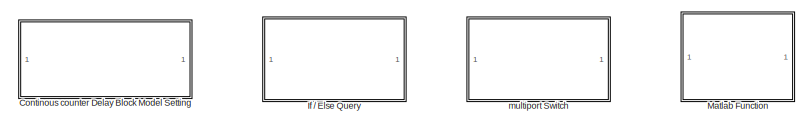
[diagram: root canvas - part 1/3, top center region]
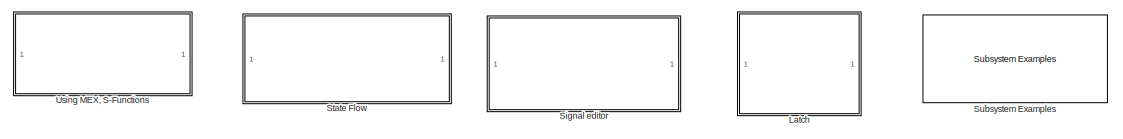
[diagram: root canvas - part 2/3, top right region]
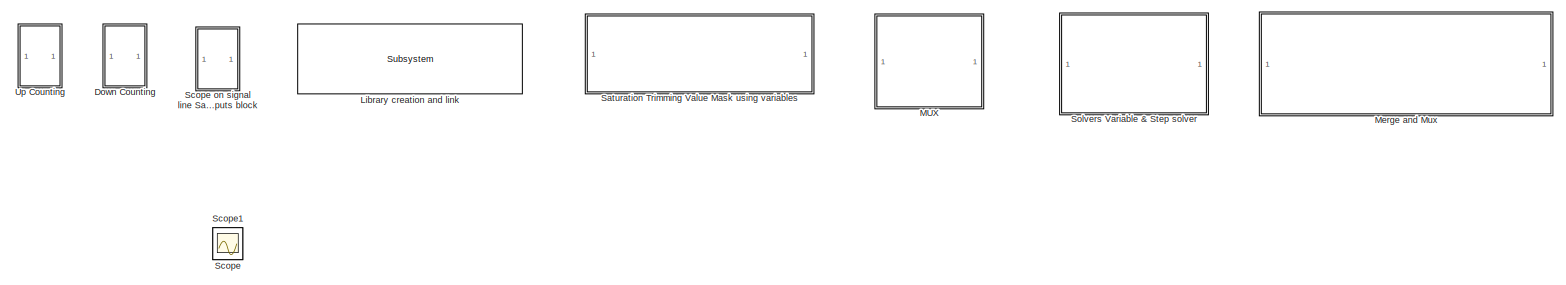
[diagram: root canvas - part 3/3, left side, full height]
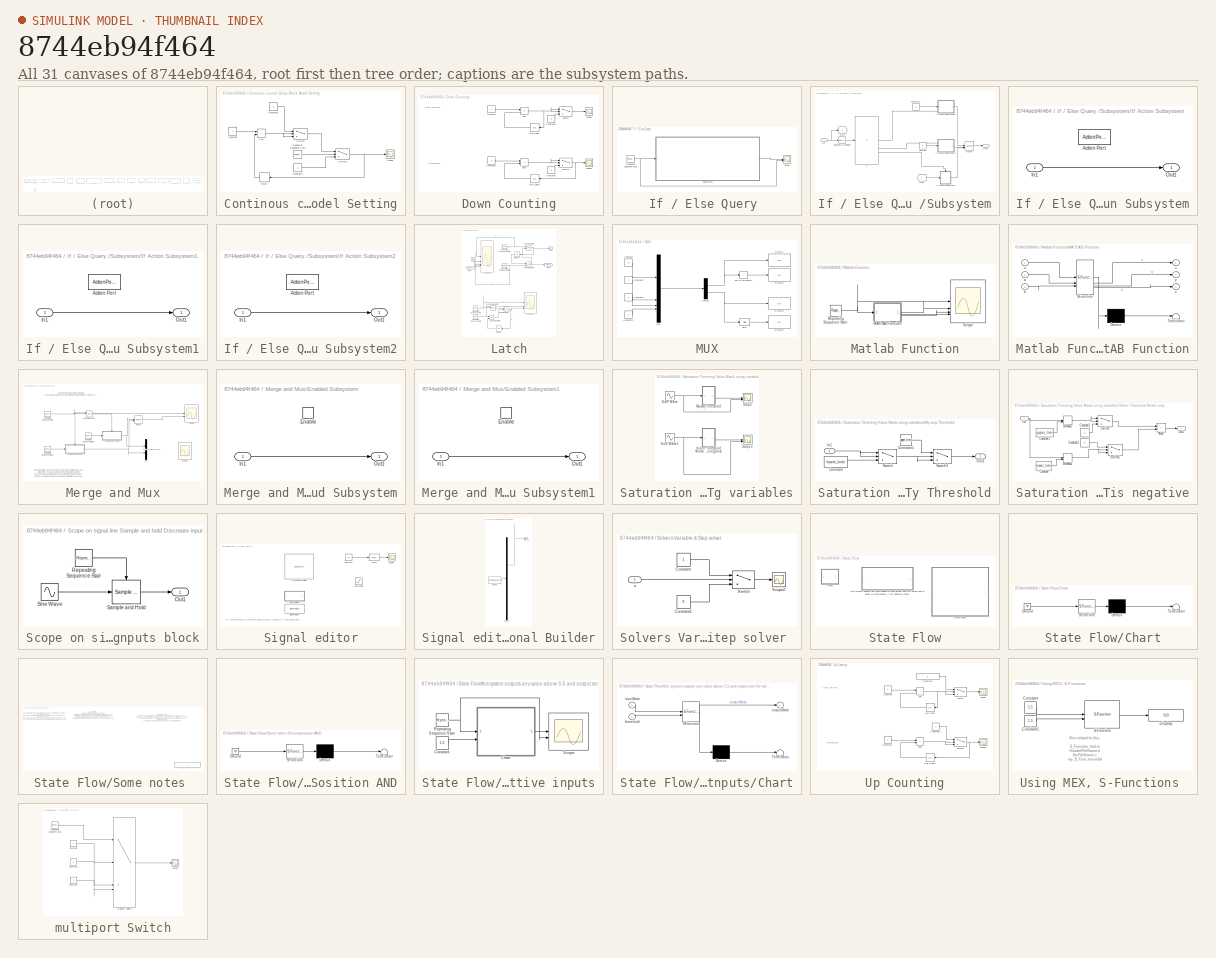
[diagram: thumbnail index - all 31 canvases of the model, root first then tree order]
MODEL slx_8744eb94f464
KIND model
CONFIG AbsTol = auto
CONFIG EnableMultiTasking = off
CONFIG FixedStep = 1
CONFIG MaxStep = auto
CONFIG MinStep = auto
CONFIG RelTol = 1e-3
CONFIG SampleTimeConstraint = Unconstrained
CONFIG SolverName = FixedStepAuto
CONFIG StartTime = 0.0
CONFIG StopTime = 10
WORKSPACE source: mxarray member
WORKSPACE Sig: Simulink.Signal (value not decoded)
WORKSPACE pi: Simulink.Parameter (value not decoded)
BLOCK [SubSystem] Continous counter Delay Block Model Setting
  Commented = on
BLOCK [Sum] Continous counter Delay Block Model Setting/Add
  IconShape = rectangular
BLOCK [Constant] Continous counter Delay Block Model Setting/Constant
BLOCK [Constant] Continous counter Delay Block Model Setting/Constant1
  Value = 0
BLOCK [Constant] Continous counter Delay Block Model Setting/Constant2
  Value = 0
BLOCK [Delay] Continous counter Delay Block Model Setting/Delay
  DelayLength = 1
  InputPortMap = u0
  NameLocation = top
BLOCK [Reference] Continous counter Delay Block Model Setting/Repeating Sequence Stair  REF=simulink/Sources/Repeating
Sequence
Stair
  SourceBlock = simulink/Sources/Repeating\nSequence\nStair
  SourceType = Repeating Sequence Stair
BLOCK [Scope] Continous counter Delay Block Model Setting/Scope
  Floating = off
  NumInputPorts = 1
  ScopeSpecificationString = Simulink.scopes.TimeScopeBlockCfg('CurrentConfiguration', extmgr.ConfigurationSet(extmgr.Configuration('Core','General UI',true),extmgr.Configuration('Core','Source UI',true),extmgr.Configuration('Sources','WiredSimulink',true,'DataLoggingVariableName','ScopeData10'),extmgr.Configuration('Visuals','Time Domain',true,'SerializedDisplays',{struct('MinYLimReal','-0.5','MaxYLimReal','4.5','YLabelReal'...<+1370ch>
BLOCK [Switch] Continous counter Delay Block Model Setting/Switch
  InputSameDT = off
  SaturateOnIntegerOverflow = off
  Threshold = 5
BLOCK [Switch] Continous counter Delay Block Model Setting/Switch1
  InputSameDT = off
  SaturateOnIntegerOverflow = off
  Threshold = 1
BLOCK [SubSystem] Down Counting
  Commented = on
BLOCK [Sum] Down Counting/Add
  IconShape = rectangular
  Inputs = -+
BLOCK [Sum] Down Counting/Add1
  IconShape = rectangular
  Inputs = -+
BLOCK [Constant] Down Counting/Constant
BLOCK [Constant] Down Counting/Constant1
  Value = 0
BLOCK [Constant] Down Counting/Constant2
BLOCK [Constant] Down Counting/Constant3
  Value = 5
BLOCK [Scope] Down Counting/Scope
  Floating = off
  NumInputPorts = 1
  ScopeSpecificationString = Simulink.scopes.TimeScopeBlockCfg('CurrentConfiguration', extmgr.ConfigurationSet(extmgr.Configuration('Core','General UI',true),extmgr.Configuration('Core','Source UI',true),extmgr.Configuration('Sources','WiredSimulink',true),extmgr.Configuration('Visuals','Time Domain',true,'SerializedDisplays',{struct('MinYLimReal','-0.625','MaxYLimReal','5.625','YLabelReal','','MinYLimMag','0.00000','MaxYLimM...<+1343ch>
BLOCK [Scope] Down Counting/Scope1
  Floating = off
  NumInputPorts = 1
  ScopeSpecificationString = Simulink.scopes.TimeScopeBlockCfg('CurrentConfiguration', extmgr.ConfigurationSet(extmgr.Configuration('Core','General UI',true),extmgr.Configuration('Core','Source UI',true),extmgr.Configuration('Sources','WiredSimulink',true,'DataLoggingVariableName','ScopeData2'),extmgr.Configuration('Visuals','Time Domain',true,'SerializedDisplays',{struct('MinYLimReal','-0.625','MaxYLimReal','5.625','YLabelRe...<+1383ch>
BLOCK [Switch] Down Counting/Switch
  InputSameDT = off
  SaturateOnIntegerOverflow = off
BLOCK [Switch] Down Counting/Switch1
  InputSameDT = off
  SaturateOnIntegerOverflow = off
BLOCK [UnitDelay] Down Counting/Unit Delay
  HasFrameUpgradeWarning = on
  InitialCondition = valueOfCounter+1
  NameLocation = top
  SampleTime = -1
BLOCK [UnitDelay] Down Counting/Unit Delay1
  HasFrameUpgradeWarning = on
  InitialCondition = valueOfCounter+1
  NameLocation = top
  SampleTime = -1
BLOCK [SubSystem] If // Else Query 
  Commented = on
BLOCK [Reference] If // Else Query /Repeating Sequence Stair  REF=simulink/Sources/Repeating
Sequence
Stair
  SourceBlock = simulink/Sources/Repeating\nSequence\nStair
  SourceType = Repeating Sequence Stair
BLOCK [Scope] If // Else Query /Scope
  Floating = off
  NumInputPorts = 2
  ScopeSpecificationString = Simulink.scopes.TimeScopeBlockCfg('CurrentConfiguration', extmgr.ConfigurationSet(extmgr.Configuration('Core','General UI',true),extmgr.Configuration('Core','Source UI',true),extmgr.Configuration('Sources','WiredSimulink',true,'DataLoggingVariableName','ScopeData10'),extmgr.Configuration('Visuals','Time Domain',true,'SerializedDisplays',{struct('MinYLimReal','-45.00000','MaxYLimReal','405.00000','...<+2040ch>
BLOCK [SubSystem] If // Else Query /Subsystem
BLOCK [Constant] If // Else Query /Subsystem/Constant
  Value = 0
BLOCK [Constant] If // Else Query /Subsystem/Constant1
  Value = 0
BLOCK [Reference] If // Else Query /Subsystem/Degrees to Radians  REF=simulink_extras/Transformations/Degrees to
Radians
  SourceBlock = simulink_extras/Transformations/Degrees to\nRadians
  SourceType = DegreesToRadians
BLOCK [From] If // Else Query /Subsystem/From
BLOCK [Goto] If // Else Query /Subsystem/Goto
BLOCK [If] If // Else Query /Subsystem/If
  ElseIfExpressions = u1 < lowerVal
  IfExpression = u1 > upperVal
BLOCK [SubSystem] If // Else Query /Subsystem/If Action Subsystem
  TreatAsAtomicUnit = on
BLOCK [ActionPort] If // Else Query /Subsystem/If Action Subsystem/Action Port
  ActionPortLabel = else
BLOCK [Inport] If // Else Query /Subsystem/If Action Subsystem/In1
BLOCK [Outport] If // Else Query /Subsystem/If Action Subsystem/Out1
BLOCK [SubSystem] If // Else Query /Subsystem/If Action Subsystem1
  TreatAsAtomicUnit = on
BLOCK [ActionPort] If // Else Query /Subsystem/If Action Subsystem1/Action Port
  ActionPortLabel = elseif(u1 < lowerVal)
BLOCK [Inport] If // Else Query /Subsystem/If Action Subsystem1/In1
BLOCK [Outport] If // Else Query /Subsystem/If Action Subsystem1/Out1
BLOCK [SubSystem] If // Else Query /Subsystem/If Action Subsystem2
  TreatAsAtomicUnit = on
BLOCK [ActionPort] If // Else Query /Subsystem/If Action Subsystem2/Action Port
  ActionPortLabel = if(u1 > upperVal)
BLOCK [Inport] If // Else Query /Subsystem/If Action Subsystem2/In1
BLOCK [Outport] If // Else Query /Subsystem/If Action Subsystem2/Out1
BLOCK [Inport] If // Else Query /Subsystem/In1
BLOCK [Merge] If // Else Query /Subsystem/Merge
  Inputs = 3
BLOCK [Outport] If // Else Query /Subsystem/Out1
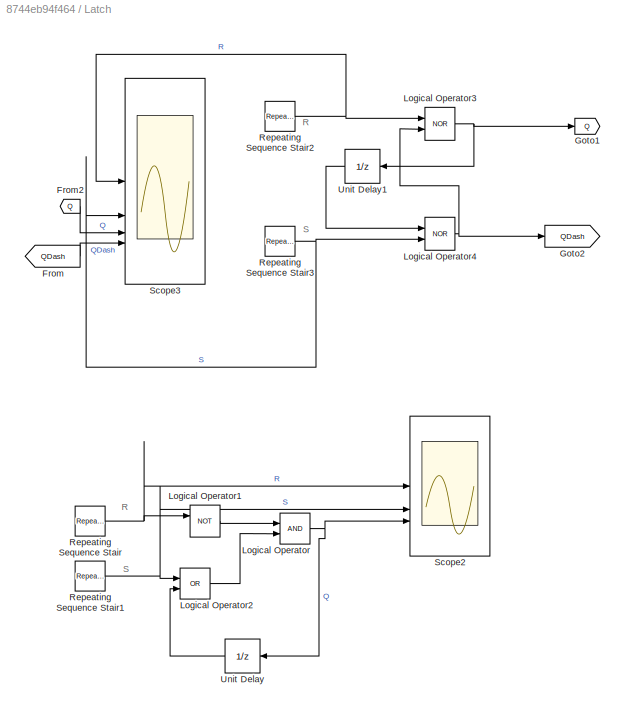
BLOCK [SubSystem] Latch
  Commented = on
BLOCK [From] Latch/From
  GotoTag = QDash
BLOCK [From] Latch/From2
  GotoTag = Q
BLOCK [Goto] Latch/Goto1
  GotoTag = Q
BLOCK [Goto] Latch/Goto2
  GotoTag = QDash
BLOCK [Logic] Latch/Logical Operator
  AllPortsSameDT = off
  OutDataTypeStr = boolean
BLOCK [Logic] Latch/Logical Operator1
  AllPortsSameDT = off
  Operator = NOT
  OutDataTypeStr = boolean
BLOCK [Logic] Latch/Logical Operator2
  AllPortsSameDT = off
  Operator = OR
  OutDataTypeStr = boolean
BLOCK [Logic] Latch/Logical Operator3
  AllPortsSameDT = off
  Operator = NOR
  OutDataTypeStr = boolean
BLOCK [Logic] Latch/Logical Operator4
  AllPortsSameDT = off
  Operator = NOR
  OutDataTypeStr = boolean
BLOCK [Reference] Latch/Repeating Sequence Stair  REF=simulink/Sources/Repeating
Sequence
Stair
  SourceBlock = simulink/Sources/Repeating\nSequence\nStair
  SourceType = Repeating Sequence Stair
BLOCK [Reference] Latch/Repeating Sequence Stair1  REF=simulink/Sources/Repeating
Sequence
Stair
  SourceBlock = simulink/Sources/Repeating\nSequence\nStair
  SourceType = Repeating Sequence Stair
BLOCK [Reference] Latch/Repeating Sequence Stair2  REF=simulink/Sources/Repeating
Sequence
Stair
  SourceBlock = simulink/Sources/Repeating\nSequence\nStair
  SourceType = Repeating Sequence Stair
BLOCK [Reference] Latch/Repeating Sequence Stair3  REF=simulink/Sources/Repeating
Sequence
Stair
  SourceBlock = simulink/Sources/Repeating\nSequence\nStair
  SourceType = Repeating Sequence Stair
BLOCK [Scope] Latch/Scope2
  Floating = off
  NumInputPorts = 3
  ScopeSpecificationString = Simulink.scopes.TimeScopeBlockCfg('CurrentConfiguration', extmgr.ConfigurationSet(extmgr.Configuration('Core','General UI',true),extmgr.Configuration('Core','Source UI',true),extmgr.Configuration('Sources','WiredSimulink',true,'DataLoggingVariableName','ScopeData3'),extmgr.Configuration('Visuals','Time Domain',true,'SerializedDisplays',{struct('MinYLimReal','-0.125','MaxYLimReal','1.125','YLabelRe...<+2646ch>
BLOCK [Scope] Latch/Scope3
  Floating = off
  NumInputPorts = 4
  ScopeSpecificationString = Simulink.scopes.TimeScopeBlockCfg('CurrentConfiguration', extmgr.ConfigurationSet(extmgr.Configuration('Core','General UI',true),extmgr.Configuration('Core','Source UI',true),extmgr.Configuration('Sources','WiredSimulink',true,'DataLoggingVariableName','ScopeData4'),extmgr.Configuration('Visuals','Time Domain',true,'SerializedDisplays',{struct('MinYLimReal','-0.125','MaxYLimReal','1.125','YLabelRe...<+3730ch>
BLOCK [UnitDelay] Latch/Unit Delay
  HasFrameUpgradeWarning = on
  NameLocation = top
  SampleTime = -1
BLOCK [UnitDelay] Latch/Unit Delay1
  HasFrameUpgradeWarning = on
  InitialCondition = 1
  NameLocation = top
  SampleTime = -1
BLOCK [Reference] Library creation and link  REF=lib_sample/Subsystem  (lib defined in slx_4dc03bdb67a3)
  Commented = on
  LibrarySourceBlock = lib_sample2/Subsystem
  SourceBlock = lib_sample/Subsystem
BLOCK [SubSystem] MUX
  Commented = on
BLOCK [Bias] MUX/Bias
  Bias = 10
  SaturateOnIntegerOverflow = off
BLOCK [Constant] MUX/Constant
  Value = 0
BLOCK [Constant] MUX/Constant1
BLOCK [Constant] MUX/Constant2
  Value = 2
BLOCK [Constant] MUX/Constant3
  Value = 3
BLOCK [Demux] MUX/Demux
  Outputs = 2
BLOCK [Display] MUX/Display
  Decimation = 1
BLOCK [Display] MUX/Display1
  Decimation = 1
BLOCK [Display] MUX/Display2
  Decimation = 1
BLOCK [Display] MUX/Display3
  Decimation = 1
BLOCK [Mux] MUX/Mux
  DisplayOption = bar
BLOCK [Sum] MUX/Sum of Elements
  IconShape = rectangular
  Inputs = +
BLOCK [SubSystem] Matlab Function
  Commented = on
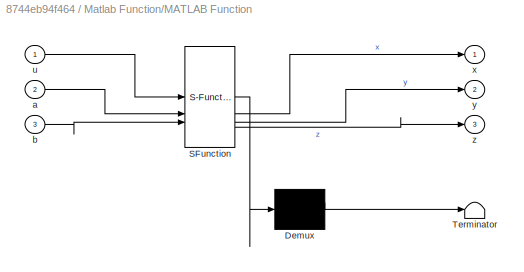
BLOCK [SubSystem] Matlab Function/MATLAB Function
  ErrorFcn = Stateflow.Translate.translate
  LibrarySourceBlock = simulink/User-Defined\nFunctions/MATLAB Function
  PermitHierarchicalResolution = ExplicitOnly
  SFBlockType = MATLAB Function
  TreatAsAtomicUnit = on
BLOCK [Demux] Matlab Function/MATLAB Function/ Demux 
  Outputs = 1
BLOCK [S-Function] Matlab Function/MATLAB Function/ SFunction 
  EnableBusSupport = on
  FunctionName = sf_sfun
  PortCounts = [3 4]
  SFcnIsStateOwnerBlock = off
  SFunctionDeploymentMode = off
  Tag = Stateflow S-Function 2
BLOCK [Terminator] Matlab Function/MATLAB Function/ Terminator 
BLOCK [Inport] Matlab Function/MATLAB Function/a
  Port = 2
BLOCK [Inport] Matlab Function/MATLAB Function/b
  Port = 3
BLOCK [Inport] Matlab Function/MATLAB Function/u
BLOCK [Outport] Matlab Function/MATLAB Function/x
BLOCK [Outport] Matlab Function/MATLAB Function/y
  Port = 2
BLOCK [Outport] Matlab Function/MATLAB Function/z
  Port = 3
BLOCK [Reference] Matlab Function/Repeating Sequence Stair  REF=simulink/Sources/Repeating
Sequence
Stair
  SourceBlock = simulink/Sources/Repeating\nSequence\nStair
  SourceType = Repeating Sequence Stair
BLOCK [Scope] Matlab Function/Scope
  Floating = off
  NumInputPorts = 4
  ScopeSpecificationString = Simulink.scopes.TimeScopeBlockCfg('CurrentConfiguration', extmgr.ConfigurationSet(extmgr.Configuration('Core','General UI',true),extmgr.Configuration('Core','Source UI',true),extmgr.Configuration('Sources','WiredSimulink',true,'DataLoggingVariableName','ScopeData11'),extmgr.Configuration('Visuals','Time Domain',true,'SerializedDisplays',{struct('MinYLimReal','-6.25','MaxYLimReal','56.25','YLabelRe...<+3407ch>
BLOCK [SubSystem] Merge and Mux
  Commented = on
BLOCK [SubSystem] Merge and Mux/Enabled Subsystem
  TreatAsAtomicUnit = on
BLOCK [EnablePort] Merge and Mux/Enabled Subsystem/Enable
BLOCK [Inport] Merge and Mux/Enabled Subsystem/In1
BLOCK [Outport] Merge and Mux/Enabled Subsystem/Out1
BLOCK [SubSystem] Merge and Mux/Enabled Subsystem1
  TreatAsAtomicUnit = on
BLOCK [EnablePort] Merge and Mux/Enabled Subsystem1/Enable
BLOCK [Inport] Merge and Mux/Enabled Subsystem1/In1
BLOCK [Outport] Merge and Mux/Enabled Subsystem1/Out1
BLOCK [Logic] Merge and Mux/Logical Operator
  AllPortsSameDT = off
  Operator = NOT
  OutDataTypeStr = boolean
BLOCK [Merge] Merge and Mux/Merge
BLOCK [Mux] Merge and Mux/Mux
  DisplayOption = bar
  Inputs = 2
BLOCK [Reference] Merge and Mux/Repeating Sequence Stair  REF=simulink/Sources/Repeating
Sequence
Stair
  SourceBlock = simulink/Sources/Repeating\nSequence\nStair
  SourceType = Repeating Sequence Stair
BLOCK [Reference] Merge and Mux/Repeating Sequence Stair1  REF=simulink/Sources/Repeating
Sequence
Stair
  SourceBlock = simulink/Sources/Repeating\nSequence\nStair
  SourceType = Repeating Sequence Stair
BLOCK [Reference] Merge and Mux/Repeating Sequence Stair2  REF=simulink/Sources/Repeating
Sequence
Stair
  SourceBlock = simulink/Sources/Repeating\nSequence\nStair
  SourceType = Repeating Sequence Stair
BLOCK [Scope] Merge and Mux/Scope
  Floating = off
  NumInputPorts = 2
  ScopeSpecificationString = Simulink.scopes.TimeScopeBlockCfg('CurrentConfiguration', extmgr.ConfigurationSet(extmgr.Configuration('Core','General UI',true),extmgr.Configuration('Core','Source UI',true),extmgr.Configuration('Sources','WiredSimulink',true,'DataLoggingVariableName','ScopeData8'),extmgr.Configuration('Visuals','Time Domain',true,'SerializedDisplays',{struct('MinYLimReal','-1.00000','MaxYLimReal','1.00000','YLab...<+2677ch>
BLOCK [Scope] Merge and Mux/Scope1
  Floating = off
  NumInputPorts = 1
  ScopeSpecificationString = Simulink.scopes.TimeScopeBlockCfg('CurrentConfiguration', extmgr.ConfigurationSet(extmgr.Configuration('Core','General UI',true),extmgr.Configuration('Core','Source UI',true),extmgr.Configuration('Sources','WiredSimulink',true,'DataLoggingVariableName','ScopeData9'),extmgr.Configuration('Visuals','Time Domain',true,'SerializedDisplays',{struct('MinYLimReal','-1.00000','MaxYLimReal','1.00000','YLab...<+2761ch>
BLOCK [SubSystem] Saturation Trimming Value Mask using variables
  Commented = on
BLOCK [SubSystem] Saturation Trimming Value Mask using variables/My way Threshold
BLOCK [Constant] Saturation Trimming Value Mask using variables/My way Threshold/Constant
  Value = lower_limit
BLOCK [Constant] Saturation Trimming Value Mask using variables/My way Threshold/Constant1
  Value = upper_limit
BLOCK [Inport] Saturation Trimming Value Mask using variables/My way Threshold/In1
BLOCK [Outport] Saturation Trimming Value Mask using variables/My way Threshold/Out1
BLOCK [Switch] Saturation Trimming Value Mask using variables/My way Threshold/Switch
  Criteria = u2 > Threshold
  InputSameDT = off
  SaturateOnIntegerOverflow = off
  Threshold = lower_limit
BLOCK [Switch] Saturation Trimming Value Mask using variables/My way Threshold/Switch1
  Criteria = u2 > Threshold
  InputSameDT = off
  SaturateOnIntegerOverflow = off
  Threshold = upper_limit
BLOCK [Scope] Saturation Trimming Value Mask using variables/Scope
  Floating = off
  NumInputPorts = 2
  ScopeSpecificationString = Simulink.scopes.TimeScopeBlockCfg('CurrentConfiguration', extmgr.ConfigurationSet(extmgr.Configuration('Core','General UI',true),extmgr.Configuration('Core','Source UI',true),extmgr.Configuration('Sources','WiredSimulink',true,'DataLoggingVariableName','ScopeData5'),extmgr.Configuration('Visuals','Time Domain',true,'SerializedDisplays',{struct('MinYLimReal','-1.625','MaxYLimReal','14.625','YLabelR...<+1960ch>
BLOCK [Scope] Saturation Trimming Value Mask using variables/Scope1
  Floating = off
  NumInputPorts = 2
  ScopeSpecificationString = Simulink.scopes.TimeScopeBlockCfg('CurrentConfiguration', extmgr.ConfigurationSet(extmgr.Configuration('Core','General UI',true),extmgr.Configuration('Core','Source UI',true),extmgr.Configuration('Sources','WiredSimulink',true,'DataLoggingVariableName','ScopeData6'),extmgr.Configuration('Visuals','Time Domain',true,'SerializedDisplays',{struct('MinYLimReal','-1.625','MaxYLimReal','14.625','YLabelR...<+2037ch>
BLOCK [Sin] Saturation Trimming Value Mask using variables/Sine Wave
  Amplitude = 15
  Frequency = 2
  SampleTime = 0
BLOCK [Sin] Saturation Trimming Value Mask using variables/Sine Wave1
  Amplitude = 15
  Frequency = 2
  SampleTime = 0
BLOCK [SubSystem] Saturation Trimming Value Mask using variables/Video Threshold Works only and only if lower limit is negative
BLOCK [Sum] Saturation Trimming Value Mask using variables/Video Threshold Works only and only if lower limit is negative/Add
  IconShape = rectangular
BLOCK [Constant] Saturation Trimming Value Mask using variables/Video Threshold Works only and only if lower limit is negative/Constant
  Value = lower_limit
BLOCK [Constant] Saturation Trimming Value Mask using variables/Video Threshold Works only and only if lower limit is negative/Constant1
  Value = upper_limit
BLOCK [Constant] Saturation Trimming Value Mask using variables/Video Threshold Works only and only if lower limit is negative/Constant2
  Value = 0
BLOCK [Constant] Saturation Trimming Value Mask using variables/Video Threshold Works only and only if lower limit is negative/Constant3
  Value = 0
BLOCK [Inport] Saturation Trimming Value Mask using variables/Video Threshold Works only and only if lower limit is negative/In1
BLOCK [MinMax] Saturation Trimming Value Mask using variables/Video Threshold Works only and only if lower limit is negative/MinMax
  Inputs = 2
BLOCK [MinMax] Saturation Trimming Value Mask using variables/Video Threshold Works only and only if lower limit is negative/MinMax1
  Function = max
  Inputs = 2
BLOCK [Outport] Saturation Trimming Value Mask using variables/Video Threshold Works only and only if lower limit is negative/Out1
BLOCK [Switch] Saturation Trimming Value Mask using variables/Video Threshold Works only and only if lower limit is negative/Switch
  InputSameDT = off
  SaturateOnIntegerOverflow = off
BLOCK [Switch] Saturation Trimming Value Mask using variables/Video Threshold Works only and only if lower limit is negative/Switch1
  InputSameDT = off
  SaturateOnIntegerOverflow = off
BLOCK [Scope] Scope
  Floating = off
  IOType = viewer
  NumInputPorts = 1
  ScopeSpecificationString = Simulink.scopes.TimeScopeBlockCfg('CurrentConfiguration', extmgr.ConfigurationSet(extmgr.Configuration('Core','General UI',true),extmgr.Configuration('Core','Source UI',true),extmgr.Configuration('Sources','WiredSimulink',true,'DataLoggingVariableName','ScopeData3'),extmgr.Configuration('Visuals','Time Domain',true,'SerializedDisplays',{struct('MinYLimReal','-6.22816','MaxYLimReal','6.2452','YLabe...<+2694ch>
BLOCK [SubSystem] Scope on signal line Sample and hold Discreate inputs block
  Commented = on
BLOCK [Outport] Scope on signal line Sample and hold Discreate inputs block/Out1
BLOCK [Reference] Scope on signal line Sample and hold Discreate inputs block/Repeating Sequence Stair  REF=simulink/Sources/Repeating
Sequence
Stair
  SourceBlock = simulink/Sources/Repeating\nSequence\nStair
  SourceType = Repeating Sequence Stair
BLOCK [Reference] Scope on signal line Sample and hold Discreate inputs block/Sample and Hold  REF=dspsigops/Sample
and Hold
  LibrarySourceBlock = dsphdlsupportsigops/Sample\nand Hold
  SourceBlock = dspsigops/Sample\nand Hold
  SourceType = Sample and Hold
BLOCK [Sin] Scope on signal line Sample and hold Discreate inputs block/Sine Wave
  Amplitude = 5
  SampleTime = 0
BLOCK [Scope] Scope1
  Floating = off
  IOType = viewer
  NumInputPorts = 1
  ScopeSpecificationString = Simulink.scopes.TimeScopeBlockCfg('CurrentConfiguration', extmgr.ConfigurationSet(extmgr.Configuration('Core','General UI',true),extmgr.Configuration('Core','Source UI',true),extmgr.Configuration('Sources','WiredSimulink',true,'DataLoggingVariableName','ScopeData4'),extmgr.Configuration('Visuals','Time Domain',true,'SerializedDisplays',{struct('MinYLimReal','-16.25','MaxYLimReal','16.25','YLabelRe...<+2008ch>
BLOCK [SubSystem] Signal editor
  Commented = on
BLOCK [Lookup_n-D] Signal editor/1-D Lookup Table
  BreakpointsForDimension1 = [0.5:0.04:4.5]
  InputPortMap = u0
  InternalRulePriority = Speed
  NumberOfTableDimensions = 1
  RndMeth = Simplest
  Table = [0:1:100]
BLOCK [Constant] Signal editor/Constant
  Value = 0.2
BLOCK [Reference] Signal editor/PWM  REF=simulink/Discontinuities/PWM
  DisableCoverage = on
  SourceBlock = simulink/Discontinuities/PWM
  SourceType = PWM
BLOCK [Saturate] Signal editor/Saturation
BLOCK [Scope] Signal editor/Scope
  Floating = off
  NumInputPorts = 1
  ScopeSpecificationString = Simulink.scopes.TimeScopeBlockCfg('CurrentConfiguration', extmgr.ConfigurationSet(extmgr.Configuration('Core','General UI',true),extmgr.Configuration('Core','Source UI',true),extmgr.Configuration('Sources','WiredSimulink',true,'DataLoggingVariableName','ScopeData2'),extmgr.Configuration('Visuals','Time Domain',true,'SerializedDisplays',{struct('MinYLimReal','-0.125','MaxYLimReal','1.125','YLabelRe...<+1377ch>
BLOCK [SubSystem] Signal editor/Signal Builder
  ClipboardFcn = sigbuilder_block('clipboard');
  CloseFcn = sigbuilder_block('close');
  ContinueFcn = sigbuilder_block('continue');
  CopyFcn = sigbuilder_block('copy');
  DeleteFcn = sigbuilder_block('delete');
  LoadFcn = sigbuilder_block('load');
  MaskHideContents = on
  ModelCloseFcn = sigbuilder_block('modelClose');
  NameChangeFcn = sigbuilder_block('namechange');
  OpenFcn = sigbuilder_block('open',[437.6 199.2 550.4 400 ]);
  PauseFcn = sigbuilder_block('pause');
  PreSaveFcn = sigbuilder_block('preSave');
  StartFcn = sigbuilder_block('start');
  StopFcn = sigbuilder_block('stop');
  Tag = STV Subsys
BLOCK [Demux] Signal editor/Signal Builder/Demux
  DisplayOption = none
  Outputs = 1
  Tag = STV Demux
BLOCK [FromWorkspace] Signal editor/Signal Builder/FromWs
  Tag = STV FromWs
  VariableName = tuvar
BLOCK [Outport] Signal editor/Signal Builder/Signal 1
  Tag = STV Outport
BLOCK [Reference] Signal editor/Signal Editor  REF=SignalEditorBlockLib/Signal Editor
  LibrarySourceBlock = simulink/Sources/Signal Editor
  SourceBlock = SignalEditorBlockLib/Signal Editor
  SourceType = SignalEditor
  UserDataPersistent = on
BLOCK [SubSystem] Solvers Variable & Step solver 
  Commented = on
BLOCK [Constant] Solvers Variable & Step solver /Constant
BLOCK [Constant] Solvers Variable & Step solver /Constant1
  Value = 0
BLOCK [Scope] Solvers Variable & Step solver /Scope2
  Floating = off
  NumInputPorts = 1
  ScopeSpecificationString = Simulink.scopes.TimeScopeBlockCfg('CurrentConfiguration', extmgr.ConfigurationSet(extmgr.Configuration('Core','General UI',true),extmgr.Configuration('Core','Source UI',true),extmgr.Configuration('Sources','WiredSimulink',true,'DataLoggingVariableName','ScopeData7'),extmgr.Configuration('Visuals','Time Domain',true,'SerializedDisplays',{struct('MinYLimReal','-0.125','MaxYLimReal','1.125','YLabelRe...<+1353ch>
BLOCK [Switch] Solvers Variable & Step solver /Switch
  InputSameDT = off
  SaturateOnIntegerOverflow = off
BLOCK [Inport] Solvers Variable & Step solver /u
BLOCK [SubSystem] State Flow
  Commented = on
BLOCK [SubSystem] State Flow/Chart
  ErrorFcn = Stateflow.Translate.translate
  PermitHierarchicalResolution = ExplicitOnly
  SFBlockType = Chart
  TreatAsAtomicUnit = on
BLOCK [Demux] State Flow/Chart/ Demux 
  Outputs = 1
BLOCK [Ground] State Flow/Chart/ Ground 
BLOCK [S-Function] State Flow/Chart/ SFunction 
  EnableBusSupport = on
  FunctionName = sf_sfun
  PortCounts = [1 1]
  SFcnIsStateOwnerBlock = off
  SFunctionDeploymentMode = off
  Tag = Stateflow S-Function 1
BLOCK [Terminator] State Flow/Chart/ Terminator 
BLOCK [SubSystem] State Flow/Some notes 
BLOCK [SubSystem] State Flow/Some notes /Decomposition AND
  ErrorFcn = Stateflow.Translate.translate
  PermitHierarchicalResolution = ExplicitOnly
  SFBlockType = Chart
  TreatAsAtomicUnit = on
BLOCK [Demux] State Flow/Some notes /Decomposition AND/ Demux 
  Outputs = 1
BLOCK [Ground] State Flow/Some notes /Decomposition AND/ Ground 
BLOCK [S-Function] State Flow/Some notes /Decomposition AND/ SFunction 
  EnableBusSupport = on
  FunctionName = sf_sfun
  PortCounts = [1 1]
  SFcnIsStateOwnerBlock = off
  SFunctionDeploymentMode = off
  Tag = Stateflow S-Function 4
BLOCK [Terminator] State Flow/Some notes /Decomposition AND/ Terminator 
BLOCK [SubSystem] State Flow/this system outputs any value above 5.5 and output zero for value less or  equal 5.5 and outputs -1 for negative inputs
BLOCK [SubSystem] State Flow/this system outputs any value above 5.5 and output zero for value less or  equal 5.5 and outputs -1 for negative inputs/Chart
  ErrorFcn = Stateflow.Translate.translate
  PermitHierarchicalResolution = ExplicitOnly
  SFBlockType = Chart
  TreatAsAtomicUnit = on
BLOCK [Demux] State Flow/this system outputs any value above 5.5 and output zero for value less or  equal 5.5 and outputs -1 for negative inputs/Chart/ Demux 
  Outputs = 1
BLOCK [S-Function] State Flow/this system outputs any value above 5.5 and output zero for value less or  equal 5.5 and outputs -1 for negative inputs/Chart/ SFunction 
  EnableBusSupport = on
  FunctionName = sf_sfun
  PortCounts = [2 2]
  SFcnIsStateOwnerBlock = off
  SFunctionDeploymentMode = off
  Tag = Stateflow S-Function 3
BLOCK [Terminator] State Flow/this system outputs any value above 5.5 and output zero for value less or  equal 5.5 and outputs -1 for negative inputs/Chart/ Terminator 
BLOCK [Inport] State Flow/this system outputs any value above 5.5 and output zero for value less or  equal 5.5 and outputs -1 for negative inputs/Chart/inputData
BLOCK [Outport] State Flow/this system outputs any value above 5.5 and output zero for value less or  equal 5.5 and outputs -1 for negative inputs/Chart/outputData
BLOCK [Inport] State Flow/this system outputs any value above 5.5 and output zero for value less or  equal 5.5 and outputs -1 for negative inputs/Chart/threshold
  Port = 2
BLOCK [Constant] State Flow/this system outputs any value above 5.5 and output zero for value less or  equal 5.5 and outputs -1 for negative inputs/Constant
  Value = 5.5
BLOCK [Reference] State Flow/this system outputs any value above 5.5 and output zero for value less or  equal 5.5 and outputs -1 for negative inputs/Repeating Sequence Stair  REF=simulink/Sources/Repeating
Sequence
Stair
  SourceBlock = simulink/Sources/Repeating\nSequence\nStair
  SourceType = Repeating Sequence Stair
BLOCK [Scope] State Flow/this system outputs any value above 5.5 and output zero for value less or  equal 5.5 and outputs -1 for negative inputs/Scope
  Floating = off
  NumInputPorts = 2
  ScopeSpecificationString = Simulink.scopes.TimeScopeBlockCfg('CurrentConfiguration', extmgr.ConfigurationSet(extmgr.Configuration('Core','General UI',true),extmgr.Configuration('Core','Source UI',true),extmgr.Configuration('Sources','WiredSimulink',true,'DataLoggingVariableName','ScopeData1'),extmgr.Configuration('Visuals','Time Domain',true,'SerializedDisplays',{struct('MinYLimReal','-6.75','MaxYLimReal','10.75','YLabelRea...<+1982ch>
BLOCK [Reference] Subsystem Examples  REF=simulink/Ports &
Subsystems/Subsystem Examples
  Commented = on
  SourceBlock = simulink/Ports &\nSubsystems/Subsystem Examples
  SourceType = Subsystem Examples
BLOCK [SubSystem] Up Counting
  Commented = on
BLOCK [Sum] Up Counting/Add
  IconShape = rectangular
BLOCK [Sum] Up Counting/Add1
  IconShape = rectangular
BLOCK [Constant] Up Counting/Constant
BLOCK [Constant] Up Counting/Constant1
  Value = 5
BLOCK [Constant] Up Counting/Constant2
BLOCK [Constant] Up Counting/Constant3
  Value = 0
BLOCK [Scope] Up Counting/Scope
  Floating = off
  NumInputPorts = 1
  ScopeSpecificationString = Simulink.scopes.TimeScopeBlockCfg('CurrentConfiguration', extmgr.ConfigurationSet(extmgr.Configuration('Core','General UI',true),extmgr.Configuration('Core','Source UI',true),extmgr.Configuration('Sources','WiredSimulink',true),extmgr.Configuration('Visuals','Time Domain',true,'SerializedDisplays',{struct('MinYLimReal','-0.625','MaxYLimReal','5.625','YLabelReal','','MinYLimMag','0.00000','MaxYLimM...<+1344ch>
BLOCK [Scope] Up Counting/Scope1
  Floating = off
  NumInputPorts = 1
  ScopeSpecificationString = Simulink.scopes.TimeScopeBlockCfg('CurrentConfiguration', extmgr.ConfigurationSet(extmgr.Configuration('Core','General UI',true),extmgr.Configuration('Core','Source UI',true),extmgr.Configuration('Sources','WiredSimulink',true,'DataLoggingVariableName','ScopeData1'),extmgr.Configuration('Visuals','Time Domain',true,'SerializedDisplays',{struct('MinYLimReal','-0.625','MaxYLimReal','5.625','YLabelRe...<+1384ch>
BLOCK [Switch] Up Counting/Switch
  Criteria = u2 > Threshold
  InputSameDT = off
  SaturateOnIntegerOverflow = off
  Threshold = valueOfCounter
BLOCK [Switch] Up Counting/Switch1
  Criteria = u2 > Threshold
  InputSameDT = off
  SaturateOnIntegerOverflow = off
  Threshold = valueOfCounter
BLOCK [UnitDelay] Up Counting/Unit Delay
  HasFrameUpgradeWarning = on
  InitialCondition = -1
  NameLocation = top
  SampleTime = -1
BLOCK [UnitDelay] Up Counting/Unit Delay1
  HasFrameUpgradeWarning = on
  InitialCondition = -1
  NameLocation = top
  SampleTime = -1
BLOCK [SubSystem] Using MEX, S-Functions 
  Commented = on
BLOCK [Constant] Using MEX, S-Functions /Constant
  Value = 3.5
BLOCK [Constant] Using MEX, S-Functions /Constant1
  Value = 1.5
BLOCK [Display] Using MEX, S-Functions /Display
  Decimation = 1
BLOCK [S-Function] Using MEX, S-Functions /S-Function
  EnableBusSupport = off
  FunctionName = my_S_Func
  SFcnIsStateOwnerBlock = off
  SFunctionDeploymentMode = off
BLOCK [SubSystem] multiport Switch
  Commented = on
BLOCK [Constant] multiport Switch/Constant
BLOCK [Constant] multiport Switch/Constant1
  Value = 2
BLOCK [Constant] multiport Switch/Constant2
  Value = 3
BLOCK [MultiPortSwitch] multiport Switch/Multiport Switch
  DataPortIndices = {1,2,20}
  InputSameDT = off
  SaturateOnIntegerOverflow = off
BLOCK [Reference] multiport Switch/Repeating Sequence Stair  REF=simulink/Sources/Repeating
Sequence
Stair
  SourceBlock = simulink/Sources/Repeating\nSequence\nStair
  SourceType = Repeating Sequence Stair
BLOCK [Scope] multiport Switch/Scope
  Floating = off
  NumInputPorts = 1
  ScopeSpecificationString = Simulink.scopes.TimeScopeBlockCfg('CurrentConfiguration', extmgr.ConfigurationSet(extmgr.Configuration('Core','General UI',true),extmgr.Configuration('Core','Source UI',true),extmgr.Configuration('Sources','WiredSimulink',true,'DataLoggingVariableName','ScopeData10'),extmgr.Configuration('Visuals','Time Domain',true,'SerializedDisplays',{struct('MinYLimReal','0.75','MaxYLimReal','3.25','YLabelReal...<+1959ch>
ANNOTATION Down Counting: Count one time
ANNOTATION Down Counting: Counting loop
ANNOTATION Latch: R
ANNOTATION Latch: S
ANNOTATION Merge and Mux: MUX outputs both signals at each time step Merge Block outputs only one signal of the inputs at each time step (most recent updated one)
ANNOTATION Merge and Mux: feeding the signl intor MUX block and Merge block in the same time and readtin the output of both block in the same time (contecting both to scope) will result in error, because of the working pricipal of Merge Block Merge block is looking at the inputs and only output the inputs that are active in this time instancem that's why it is forbidded and will resault also in erro if you tried to connect...<+578ch>
ANNOTATION Merge and Mux: try connecting to scope :D
ANNOTATION Signal editor: it is recommended in mathworks documentation to migrate to using signal editor instead of signal builder
ANNOTATION State Flow/Some notes : State flow terms: State : where the current executing stay Entry : is the action being takeing on entering a state (done once) During : is the action that is being doing while in the state itself (done in a loop repeatedly until we leave the state) Exit : is the action that is done on leaving a state (done once) Bind : it is a feature that mostly refer to the data or events being broadcasted from ...<+2699ch>
ANNOTATION State Flow/Some notes : Systems Types: Enabled System : entering system (start executing) requires a specific key (condition, Polling) to enable the system Triggered System : entering system is done depending on specific timing schedual Event System : entering system (start executing) requires a specific key (Event, Interrupt) to enable the system Temporal Logic: system that exist in a state for specific period (absolute...<+1172ch>
ANNOTATION State Flow/Some notes : If you have a transition that exits a state based on a condition that evaluates to TRUE , and that transition leads to a junction point where none of the outgoing transitions have a condition that evaluates to TRUE , the behavior depends on the solver settings in your Simulink model. Deterministic Solver: If you are using a deterministic solver, such as a fixed-step solver, the solver will choose ...<+1443ch>
ANNOTATION Up Counting: Count one time
ANNOTATION Up Counting: Counting loop
ANNOTATION Using MEX, S-Functions : files related to this: S_Function_trial.m HeaderFileName.h SrcFileName.c my_S_Func.mexw64 my_S_Func.c
NET Continous counter Delay Block Model Setting/Add:1 -> Continous counter Delay Block Model Setting/Switch:2, Continous counter Delay Block Model Setting/Switch:3
LINE Continous counter Delay Block Model Setting/Constant1:1 -> Continous counter Delay Block Model Setting/Switch:1
LINE Continous counter Delay Block Model Setting/Constant2:1 -> Continous counter Delay Block Model Setting/Switch1:3
LINE Continous counter Delay Block Model Setting/Constant:1 -> Continous counter Delay Block Model Setting/Add:1
LINE Continous counter Delay Block Model Setting/Delay:1 -> Continous counter Delay Block Model Setting/Add:2
LINE Continous counter Delay Block Model Setting/Repeating Sequence Stair:1 -> Continous counter Delay Block Model Setting/Switch1:2
NET Continous counter Delay Block Model Setting/Switch1:1 -> Continous counter Delay Block Model Setting/Delay:1, Continous counter Delay Block Model Setting/Scope:1
LINE Continous counter Delay Block Model Setting/Switch:1 -> Continous counter Delay Block Model Setting/Switch1:1
NET Down Counting/Add1:1 -> Down Counting/Switch1:1, Down Counting/Switch1:2
NET Down Counting/Add:1 -> Down Counting/Switch:1, Down Counting/Switch:2, Down Counting/Unit Delay:1
LINE Down Counting/Constant1:1 -> Down Counting/Switch:3
LINE Down Counting/Constant2:1 -> Down Counting/Add1:1
LINE Down Counting/Constant3:1 -> Down Counting/Switch1:3
LINE Down Counting/Constant:1 -> Down Counting/Add:1
NET Down Counting/Switch1:1 -> Down Counting/Scope1:1, Down Counting/Unit Delay1:1
LINE Down Counting/Switch:1 -> Down Counting/Scope:1
LINE Down Counting/Unit Delay1:1 -> Down Counting/Add1:2
LINE Down Counting/Unit Delay:1 -> Down Counting/Add:2
NET If // Else Query /Repeating Sequence Stair:1 -> If // Else Query /Scope:2, If // Else Query /Subsystem:1
LINE If // Else Query /Subsystem/Constant1:1 -> If // Else Query /Subsystem/If Action Subsystem2:1
LINE If // Else Query /Subsystem/Constant:1 -> If // Else Query /Subsystem/If Action Subsystem1:1
LINE If // Else Query /Subsystem/Degrees to Radians:1 -> If // Else Query /Subsystem/If:1
LINE If // Else Query /Subsystem/From:1 -> If // Else Query /Subsystem/If Action Subsystem:1
LINE If // Else Query /Subsystem/If Action Subsystem/In1:1 -> If // Else Query /Subsystem/If Action Subsystem/Out1:1
LINE If // Else Query /Subsystem/If Action Subsystem1/In1:1 -> If // Else Query /Subsystem/If Action Subsystem1/Out1:1
LINE If // Else Query /Subsystem/If Action Subsystem1:1 -> If // Else Query /Subsystem/Merge:2
LINE If // Else Query /Subsystem/If Action Subsystem2/In1:1 -> If // Else Query /Subsystem/If Action Subsystem2/Out1:1
LINE If // Else Query /Subsystem/If Action Subsystem2:1 -> If // Else Query /Subsystem/Merge:1
LINE If // Else Query /Subsystem/If Action Subsystem:1 -> If // Else Query /Subsystem/Merge:3
LINE If // Else Query /Subsystem/If:1 -> If // Else Query /Subsystem/If Action Subsystem2:ifaction
LINE If // Else Query /Subsystem/If:2 -> If // Else Query /Subsystem/If Action Subsystem1:ifaction
LINE If // Else Query /Subsystem/If:3 -> If // Else Query /Subsystem/If Action Subsystem:ifaction
NET If // Else Query /Subsystem/In1:1 -> If // Else Query /Subsystem/Degrees to Radians:1, If // Else Query /Subsystem/Goto:1
LINE If // Else Query /Subsystem/Merge:1 -> If // Else Query /Subsystem/Out1:1
LINE If // Else Query /Subsystem:1 -> If // Else Query /Scope:1
LINE Latch/From2:1 -> Latch/Scope3:3
LINE Latch/From:1 -> Latch/Scope3:4
LINE Latch/Logical Operator1:1 -> Latch/Logical Operator:1
LINE Latch/Logical Operator2:1 -> Latch/Logical Operator:2
NET Latch/Logical Operator3:1 -> Latch/Goto1:1, Latch/Unit Delay1:1
NET Latch/Logical Operator4:1 -> Latch/Goto2:1, Latch/Logical Operator3:2
NET Latch/Logical Operator:1 -> Latch/Scope2:3, Latch/Unit Delay:1
NET Latch/Repeating Sequence Stair1:1 -> Latch/Logical Operator2:1, Latch/Scope2:2
NET Latch/Repeating Sequence Stair2:1 -> Latch/Logical Operator3:1, Latch/Scope3:1
NET Latch/Repeating Sequence Stair3:1 -> Latch/Logical Operator4:2, Latch/Scope3:2
NET Latch/Repeating Sequence Stair:1 -> Latch/Logical Operator1:1, Latch/Scope2:1
LINE Latch/Unit Delay1:1 -> Latch/Logical Operator4:1
LINE Latch/Unit Delay:1 -> Latch/Logical Operator2:2
LINE MUX/Bias:1 -> MUX/Display3:1
LINE MUX/Constant1:1 -> MUX/Mux:2
LINE MUX/Constant2:1 -> MUX/Mux:3
LINE MUX/Constant3:1 -> MUX/Mux:4
LINE MUX/Constant:1 -> MUX/Mux:1
NET MUX/Demux:1 -> MUX/Display:1, MUX/Sum of Elements:1
NET MUX/Demux:2 -> MUX/Bias:1, MUX/Display1:1
LINE MUX/Mux:1 -> MUX/Demux:1
LINE MUX/Sum of Elements:1 -> MUX/Display2:1
LINE Matlab Function/MATLAB Function:1 -> Matlab Function/Scope:2
LINE Matlab Function/MATLAB Function:2 -> Matlab Function/Scope:3
LINE Matlab Function/MATLAB Function:3 -> Matlab Function/Scope:4
NET Matlab Function/Repeating Sequence Stair:1 -> Matlab Function/MATLAB Function:1, Matlab Function/Scope:1
LINE Merge and Mux/Enabled Subsystem/In1:1 -> Merge and Mux/Enabled Subsystem/Out1:1
LINE Merge and Mux/Enabled Subsystem1/In1:1 -> Merge and Mux/Enabled Subsystem1/Out1:1
NET Merge and Mux/Enabled Subsystem1:1 -> Merge and Mux/Merge:1, Merge and Mux/Mux:1
NET Merge and Mux/Enabled Subsystem:1 -> Merge and Mux/Merge:2, Merge and Mux/Mux:2
LINE Merge and Mux/Logical Operator:1 -> Merge and Mux/Enabled Subsystem1:enable
LINE Merge and Mux/Merge:1 -> Merge and Mux/Scope:2
LINE Merge and Mux/Repeating Sequence Stair1:1 -> Merge and Mux/Enabled Subsystem:1
LINE Merge and Mux/Repeating Sequence Stair2:1 -> Merge and Mux/Enabled Subsystem1:1
NET Merge and Mux/Repeating Sequence Stair:1 -> Merge and Mux/Enabled Subsystem:enable, Merge and Mux/Logical Operator:1, Merge and Mux/Scope:1
LINE Saturation Trimming Value Mask using variables/My way Threshold/Constant1:1 -> Saturation Trimming Value Mask using variables/My way Threshold/Switch1:1
LINE Saturation Trimming Value Mask using variables/My way Threshold/Constant:1 -> Saturation Trimming Value Mask using variables/My way Threshold/Switch:3
NET Saturation Trimming Value Mask using variables/My way Threshold/In1:1 -> Saturation Trimming Value Mask using variables/My way Threshold/Switch:1, Saturation Trimming Value Mask using variables/My way Threshold/Switch:2
LINE Saturation Trimming Value Mask using variables/My way Threshold/Switch1:1 -> Saturation Trimming Value Mask using variables/My way Threshold/Out1:1
NET Saturation Trimming Value Mask using variables/My way Threshold/Switch:1 -> Saturation Trimming Value Mask using variables/My way Threshold/Switch1:2, Saturation Trimming Value Mask using variables/My way Threshold/Switch1:3
LINE Saturation Trimming Value Mask using variables/My way Threshold:1 -> Saturation Trimming Value Mask using variables/Scope:1
NET Saturation Trimming Value Mask using variables/Sine Wave1:1 -> Saturation Trimming Value Mask using variables/Scope1:2, Saturation Trimming Value Mask using variables/Video Threshold Works only and only if lower limit is negative:1
NET Saturation Trimming Value Mask using variables/Sine Wave:1 -> Saturation Trimming Value Mask using variables/My way Threshold:1, Saturation Trimming Value Mask using variables/Scope:2
LINE Saturation Trimming Value Mask using variables/Video Threshold Works only and only if lower limit is negative/Add:1 -> Saturation Trimming Value Mask using variables/Video Threshold Works only and only if lower limit is negative/Out1:1
LINE Saturation Trimming Value Mask using variables/Video Threshold Works only and only if lower limit is negative/Constant1:1 -> Saturation Trimming Value Mask using variables/Video Threshold Works only and only if lower limit is negative/MinMax:2
LINE Saturation Trimming Value Mask using variables/Video Threshold Works only and only if lower limit is negative/Constant2:1 -> Saturation Trimming Value Mask using variables/Video Threshold Works only and only if lower limit is negative/Switch:3
LINE Saturation Trimming Value Mask using variables/Video Threshold Works only and only if lower limit is negative/Constant3:1 -> Saturation Trimming Value Mask using variables/Video Threshold Works only and only if lower limit is negative/Switch1:1
LINE Saturation Trimming Value Mask using variables/Video Threshold Works only and only if lower limit is negative/Constant:1 -> Saturation Trimming Value Mask using variables/Video Threshold Works only and only if lower limit is negative/MinMax1:2
NET Saturation Trimming Value Mask using variables/Video Threshold Works only and only if lower limit is negative/In1:1 -> Saturation Trimming Value Mask using variables/Video Threshold Works only and only if lower limit is negative/MinMax1:1, Saturation Trimming Value Mask using variables/Video Threshold Works only and only if lower limit is negative/MinMax:1
NET Saturation Trimming Value Mask using variables/Video Threshold Works only and only if lower limit is negative/MinMax1:1 -> Saturation Trimming Value Mask using variables/Video Threshold Works only and only if lower limit is negative/Switch1:2, Saturation Trimming Value Mask using variables/Video Threshold Works only and only if lower limit is negative/Switch1:3
NET Saturation Trimming Value Mask using variables/Video Threshold Works only and only if lower limit is negative/MinMax:1 -> Saturation Trimming Value Mask using variables/Video Threshold Works only and only if lower limit is negative/Switch:1, Saturation Trimming Value Mask using variables/Video Threshold Works only and only if lower limit is negative/Switch:2
LINE Saturation Trimming Value Mask using variables/Video Threshold Works only and only if lower limit is negative/Switch1:1 -> Saturation Trimming Value Mask using variables/Video Threshold Works only and only if lower limit is negative/Add:2
LINE Saturation Trimming Value Mask using variables/Video Threshold Works only and only if lower limit is negative/Switch:1 -> Saturation Trimming Value Mask using variables/Video Threshold Works only and only if lower limit is negative/Add:1
LINE Saturation Trimming Value Mask using variables/Video Threshold Works only and only if lower limit is negative:1 -> Saturation Trimming Value Mask using variables/Scope1:1
LINE Scope on signal line Sample and hold Discreate inputs block/Repeating Sequence Stair:1 -> Scope on signal line Sample and hold Discreate inputs block/Sample and Hold:trigger
LINE Scope on signal line Sample and hold Discreate inputs block/Sample and Hold:1 -> Scope on signal line Sample and hold Discreate inputs block/Out1:1
LINE Scope on signal line Sample and hold Discreate inputs block/Sine Wave:1 -> Scope on signal line Sample and hold Discreate inputs block/Sample and Hold:1
LINE Signal editor/Constant:1 -> Signal editor/PWM:1
LINE Signal editor/PWM:1 -> Signal editor/Scope:1
LINE Solvers Variable & Step solver /Constant1:1 -> Solvers Variable & Step solver /Switch:3
LINE Solvers Variable & Step solver /Constant:1 -> Solvers Variable & Step solver /Switch:1
LINE Solvers Variable & Step solver /Switch:1 -> Solvers Variable & Step solver /Scope2:1
LINE Solvers Variable & Step solver /u:1 -> Solvers Variable & Step solver /Switch:2
LINE State Flow/this system outputs any value above 5.5 and output zero for value less or  equal 5.5 and outputs -1 for negative inputs/Chart:1 -> State Flow/this system outputs any value above 5.5 and output zero for value less or  equal 5.5 and outputs -1 for negative inputs/Scope:2
LINE State Flow/this system outputs any value above 5.5 and output zero for value less or  equal 5.5 and outputs -1 for negative inputs/Constant:1 -> State Flow/this system outputs any value above 5.5 and output zero for value less or  equal 5.5 and outputs -1 for negative inputs/Chart:2
NET State Flow/this system outputs any value above 5.5 and output zero for value less or  equal 5.5 and outputs -1 for negative inputs/Repeating Sequence Stair:1 -> State Flow/this system outputs any value above 5.5 and output zero for value less or  equal 5.5 and outputs -1 for negative inputs/Chart:1, State Flow/this system outputs any value above 5.5 and output zero for value less or  equal 5.5 and outputs -1 for negative inputs/Scope:1
NET Up Counting/Add1:1 -> Up Counting/Switch1:2, Up Counting/Switch1:3
NET Up Counting/Add:1 -> Up Counting/Switch:2, Up Counting/Switch:3, Up Counting/Unit Delay:1
LINE Up Counting/Constant1:1 -> Up Counting/Switch:1
LINE Up Counting/Constant2:1 -> Up Counting/Add1:1
LINE Up Counting/Constant3:1 -> Up Counting/Switch1:1
LINE Up Counting/Constant:1 -> Up Counting/Add:1
NET Up Counting/Switch1:1 -> Up Counting/Scope1:1, Up Counting/Unit Delay1:1
LINE Up Counting/Switch:1 -> Up Counting/Scope:1
LINE Up Counting/Unit Delay1:1 -> Up Counting/Add1:2
LINE Up Counting/Unit Delay:1 -> Up Counting/Add:2
LINE Using MEX, S-Functions /Constant1:1 -> Using MEX, S-Functions /S-Function:2
LINE Using MEX, S-Functions /Constant:1 -> Using MEX, S-Functions /S-Function:1
LINE Using MEX, S-Functions /S-Function:1 -> Using MEX, S-Functions /Display:1
LINE multiport Switch/Constant1:1 -> multiport Switch/Multiport Switch:3
LINE multiport Switch/Constant2:1 -> multiport Switch/Multiport Switch:4
LINE multiport Switch/Constant:1 -> multiport Switch/Multiport Switch:2
LINE multiport Switch/Multiport Switch:1 -> multiport Switch/Scope:1
LINE multiport Switch/Repeating Sequence Stair:1 -> multiport Switch/Multiport Switch:1
note: NET lines group one-source signal fan-out (src -> all destinations, sorted); 1:1 wires keep LINE
CHART State Flow/Chart states=2 transitions=4
  STATE_LABEL 'A\nen:\na = a + 1;'
  STATE_LABEL 'B\nen:\n'
CHART Matlab Function/MATLAB Function states=1 transitions=1
  STATE_LABEL 'eML_blk_kernel()'
  STATE_LABEL 'SCRIPT:\nfunction [x,y,z] = fcn(u,a,b)\n\nif (u > 30)\n    y= 1;\nelseif (u < 25 && u > 10)\n    y = 2;\nelse\n    y = 3;\nend\n\na= 20;\nb = 30;\nx = a;\nz = b;\n\n\n'
CHART State Flow/this system outputs any value above 5.5 
and output zero for value less or  equal 5.5
and outputs -1 for negative inputs/Chart states=0 transitions=9
CHART State Flow/Some notes /Decomposition AND states=6 transitions=6
  STATE_LABEL 'State1\n'
  STATE_LABEL 'a\nentry:\nx = 1;'
  STATE_LABEL 'b\nentry:\nx = 0;'
  STATE_LABEL '[x == 0]'
  STATE_LABEL '[x == 1]'
  STATE_LABEL 'a\nentry:\nx = 1;'
  STATE_LABEL 'b\nentry:\nx = 0;'
  STATE_LABEL 'State2\n'
  STATE_LABEL 'a\nentry:\nx = 1;'
  STATE_LABEL 'b\nentry:\nx = 0;'
  STATE_LABEL '[x == 0]'
  STATE_LABEL '[x == 1]'
  STATE_LABEL 'a\nentry:\nx = 1;'
  STATE_LABEL 'b\nentry:\nx = 0;'
CHART  states=0 transitions=0
CHART  states=0 transitions=0
CHART  states=0 transitions=0
CHART  states=0 transitions=0
